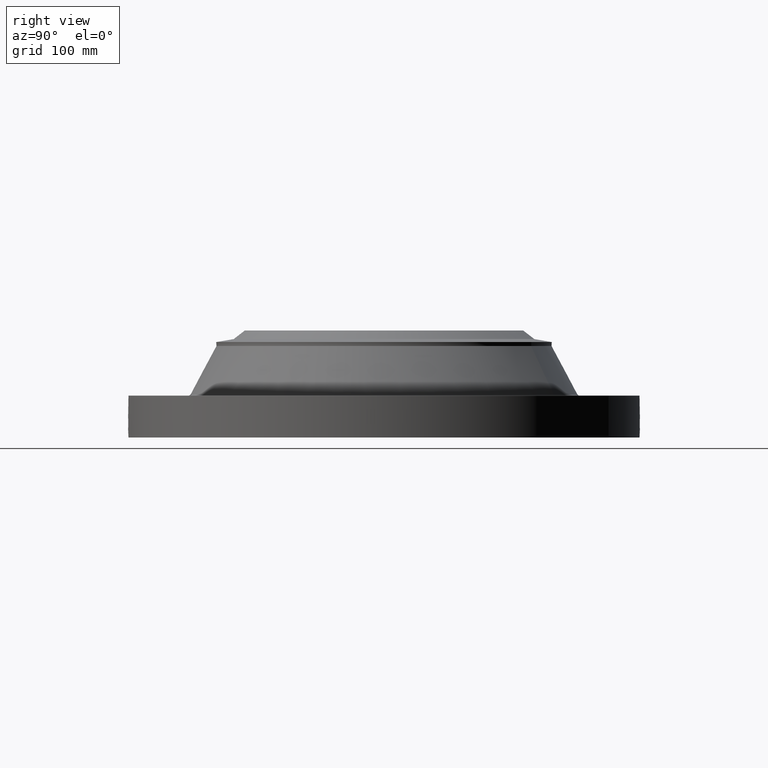
[diagram: clean part render]
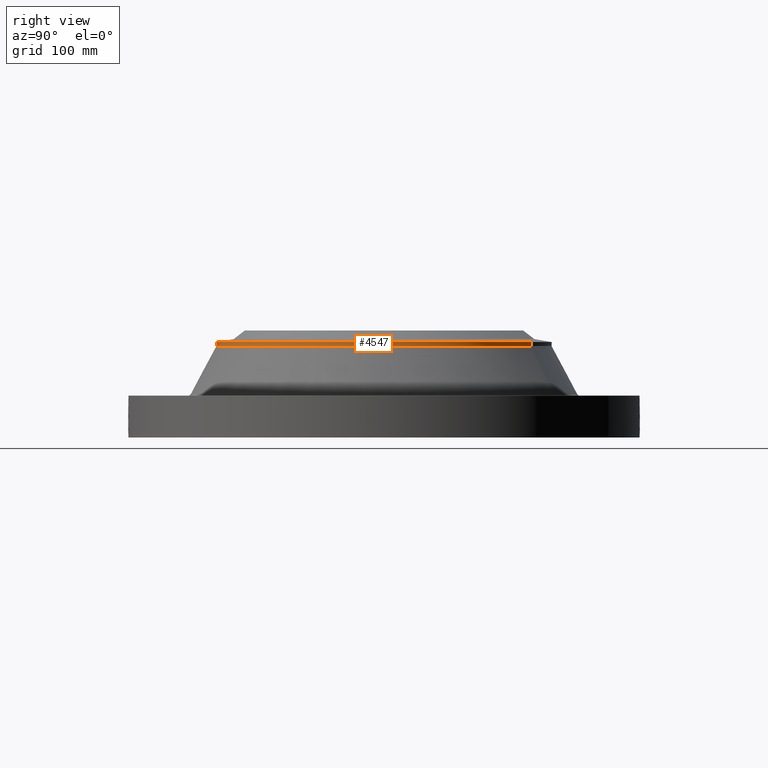
[diagram: same view with one face highlighted and labeled with its STEP entity id]
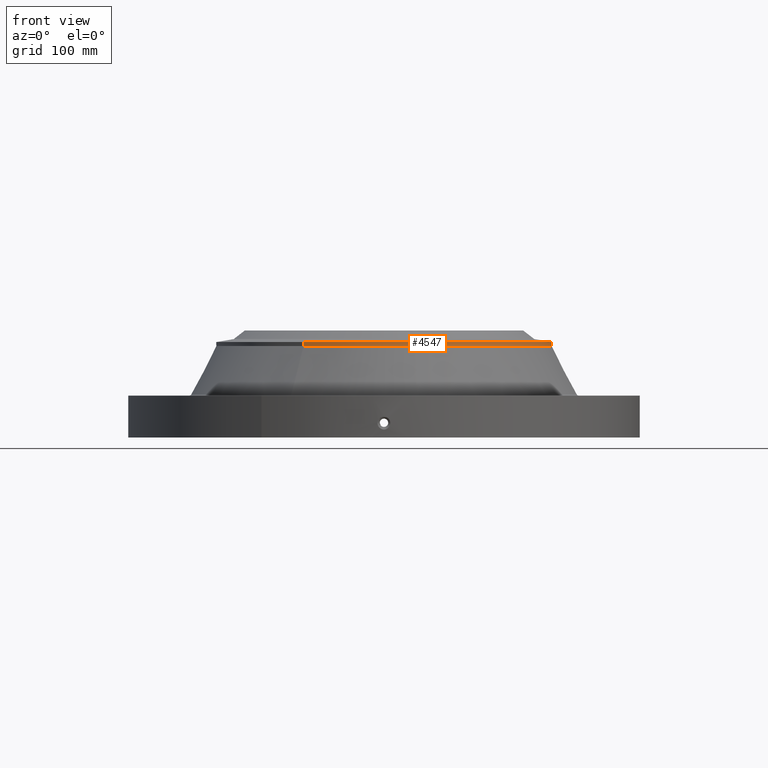
[diagram: same view with one face highlighted and labeled with its STEP entity id]
A machine part, right view. The second image highlights one B-rep face of the part: STEP entity #4547.
A second angle (front view) of the same face is appended — the face is thin or edge-on in the first view.
In plain terms, the highlighted cylindrical surface (partial cylindrical patch) has radius 254 mm, axis along (0, 0, -1).
Its self-contained STEP definition (entity closure, byte-faithful):
#3728=AXIS2_PLACEMENT_3D('Circle Axis2P3D',#3726,#3727,$) ;
#4512=AXIS2_PLACEMENT_3D('Cylinder Axis2P3D',#4509,#4510,#4511) ;
#4530=AXIS2_PLACEMENT_3D('Circle Axis2P3D',#4528,#4529,$) ;
#4537=AXIS2_PLACEMENT_3D('Circle Axis2P3D',#4535,#4536,$) ;
#3723=CARTESIAN_POINT('Vertex',(4.79425538606,8.77582561894,5.5135401396)) ;
#3726=CARTESIAN_POINT('Axis2P3D Location',(0.,0.,5.5135401396)) ;
#3730=CARTESIAN_POINT('Vertex',(-4.79425538606,-8.77582561894,5.5135401396)) ;
#4509=CARTESIAN_POINT('Axis2P3D Location',(0.,0.,3.25000000001)) ;
#4514=CARTESIAN_POINT('Line Origine',(-4.79425538606,-8.77582561894,5.63165037582)) ;
#4518=CARTESIAN_POINT('Vertex',(-4.79425538606,-8.77582561894,5.74976061205)) ;
#4521=CARTESIAN_POINT('Line Origine',(4.79425538606,8.77582561894,5.63165037582)) ;
#4525=CARTESIAN_POINT('Vertex',(4.79425538606,8.77582561894,5.74976061205)) ;
#4528=CARTESIAN_POINT('Axis2P3D Location',(0.,0.,5.74976061205)) ;
#4532=CARTESIAN_POINT('Vertex',(4.79425538606,-8.77582561894,5.74976061205)) ;
#4535=CARTESIAN_POINT('Axis2P3D Location',(0.,0.,5.74976061205)) ;
#3727=DIRECTION('Axis2P3D Direction',(0.,0.,-0.0393700787402)) ;
#4510=DIRECTION('Axis2P3D Direction',(0.,0.,-0.0393700787402)) ;
#4511=DIRECTION('Axis2P3D XDirection',(-0.0188750212049,-0.0345504945626,0.)) ;
#4515=DIRECTION('Vector Direction',(0.,0.,-0.0393700787402)) ;
#4522=DIRECTION('Vector Direction',(0.,0.,-0.0393700787402)) ;
#4529=DIRECTION('Axis2P3D Direction',(0.,0.,-0.0393700787402)) ;
#4536=DIRECTION('Axis2P3D Direction',(0.,0.,-0.0393700787402)) ;
#4516=VECTOR('Line Direction',#4515,0.0393700787402) ;
#4523=VECTOR('Line Direction',#4522,0.0393700787402) ;
#4541=ORIENTED_EDGE('',*,*,#4520,.F.) ;
#4542=ORIENTED_EDGE('',*,*,#3732,.F.) ;
#4543=ORIENTED_EDGE('',*,*,#4527,.T.) ;
#4544=ORIENTED_EDGE('',*,*,#4534,.F.) ;
#4545=ORIENTED_EDGE('',*,*,#4539,.T.) ;
#4547=ADVANCED_FACE('PartBody',(#4546),#4513,.T.) ;
#3729=CIRCLE('generated circle',#3728,10.) ;
#4531=CIRCLE('generated circle',#4530,10.) ;
#4538=CIRCLE('generated circle',#4537,10.) ;
#4513=CYLINDRICAL_SURFACE('generated cylinder',#4512,10.) ;
#3732=EDGE_CURVE('',#3724,#3731,#3729,.T.) ;
#4520=EDGE_CURVE('',#3731,#4519,#4517,.F.) ;
#4527=EDGE_CURVE('',#3724,#4526,#4524,.F.) ;
#4534=EDGE_CURVE('',#4533,#4526,#4531,.F.) ;
#4539=EDGE_CURVE('',#4533,#4519,#4538,.T.) ;
#4540=EDGE_LOOP('',(#4541,#4542,#4543,#4544,#4545)) ;
#4546=FACE_OUTER_BOUND('',#4540,.T.) ;
#4517=LINE('Line',#4514,#4516) ;
#4524=LINE('Line',#4521,#4523) ;
#3724=VERTEX_POINT('',#3723) ;
#3731=VERTEX_POINT('',#3730) ;
#4519=VERTEX_POINT('',#4518) ;
#4526=VERTEX_POINT('',#4525) ;
#4533=VERTEX_POINT('',#4532) ;